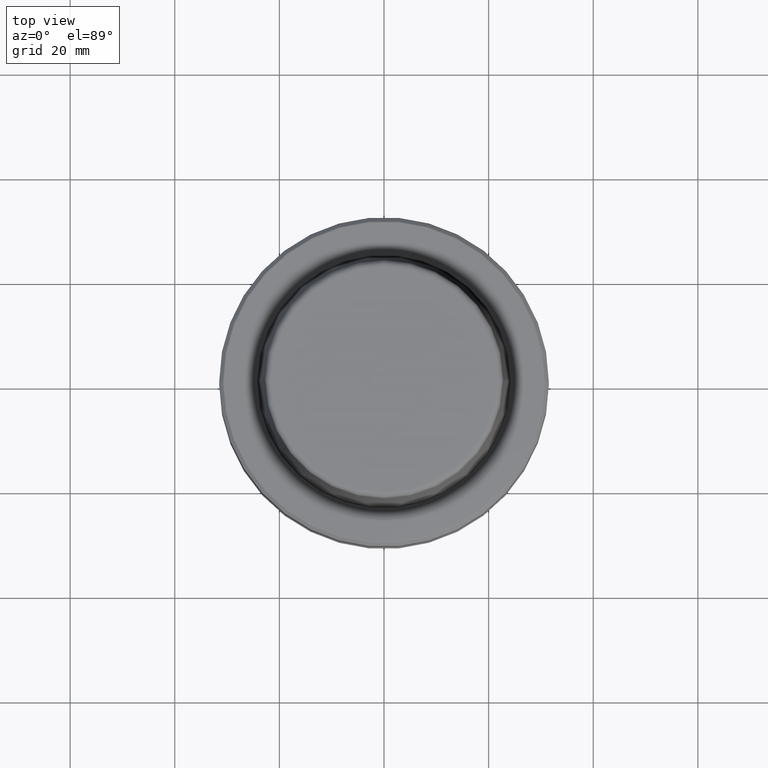
[diagram: clean part render]
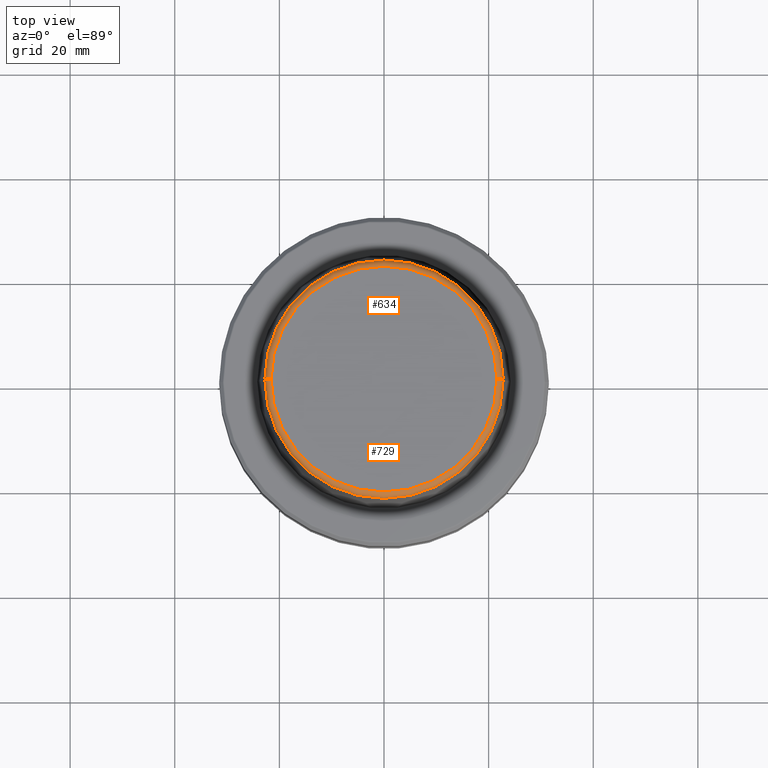
[diagram: same view with one multi-face feature highlighted, each face labeled with its STEP entity id]
A machine part, top view. The highlighted faces form ONE feature: a constant-radius fillet chain: 2 tangent blend faces with common blend radius 1.2 mm. The faces share edges in the B-rep.
Their STEP definitions:
[1] entity #634 (Torus):
#8 = CARTESIAN_POINT ( 'NONE',  ( 0.0000000000000000000, 0.0000000000000000000, 31.89999999999999900 ) ) ;
#106 = CARTESIAN_POINT ( 'NONE',  ( 21.58108272732117100, 0.0000000000000000000, 31.89999999999999900 ) ) ;
#125 = EDGE_CURVE ( 'NONE', #671, #1227, #997, .T. ) ;
#139 = DIRECTION ( 'NONE',  ( 0.0000000000000000000, 0.0000000000000000000, -1.000000000000000000 ) ) ;
#157 = VERTEX_POINT ( 'NONE', #813 ) ;
#261 = ORIENTED_EDGE ( 'NONE', *, *, #674, .F. ) ;
#280 = DIRECTION ( 'NONE',  ( -0.0000000000000000000, -0.0000000000000000000, 1.000000000000000000 ) ) ;
#339 = AXIS2_PLACEMENT_3D ( 'NONE', #889, #776, #1081 ) ;
#379 = AXIS2_PLACEMENT_3D ( 'NONE', #680, #605, #1077 ) ;
#441 = VERTEX_POINT ( 'NONE', #1129 ) ;
#465 = ORIENTED_EDGE ( 'NONE', *, *, #1254, .T. ) ;
#524 = AXIS2_PLACEMENT_3D ( 'NONE', #8, #280, #643 ) ;
#534 = AXIS2_PLACEMENT_3D ( 'NONE', #838, #914, #139 ) ;
#564 = FACE_OUTER_BOUND ( 'NONE', #705, .T. ) ;
#598 = ORIENTED_EDGE ( 'NONE', *, *, #125, .F. ) ;
#605 = DIRECTION ( 'NONE',  ( -0.0000000000000000000, -0.0000000000000000000, 1.000000000000000000 ) ) ;
#606 = CIRCLE ( 'NONE', #1190, 1.200000000000003100 ) ;
#634 = ADVANCED_FACE ( 'NONE', ( #564 ), #886, .T. ) ;
#643 = DIRECTION ( 'NONE',  ( 1.000000000000000000, 0.0000000000000000000, 0.0000000000000000000 ) ) ;
#654 = ORIENTED_EDGE ( 'NONE', *, *, #884, .T. ) ;
#671 = VERTEX_POINT ( 'NONE', #1222 ) ;
#674 = EDGE_CURVE ( 'NONE', #1227, #157, #1116, .T. ) ;
#680 = CARTESIAN_POINT ( 'NONE',  ( 0.0000000000000000000, 0.0000000000000000000, 30.76004333261571900 ) ) ;
#705 = EDGE_LOOP ( 'NONE', ( #654, #465, #261, #598 ) ) ;
#745 = DIRECTION ( 'NONE',  ( -1.000000000000000000, 1.224646799147353200E-016, 0.0000000000000000000 ) ) ;
#776 = DIRECTION ( 'NONE',  ( -0.0000000000000000000, -0.0000000000000000000, 1.000000000000000000 ) ) ;
#787 = CARTESIAN_POINT ( 'NONE',  ( -21.58108272732117100, 2.642920388414810300E-015, 30.69999999999999200 ) ) ;
#813 = CARTESIAN_POINT ( 'NONE',  ( -21.58108272732117100, 2.716307157494421400E-015, 31.89999999999999900 ) ) ;
#838 = CARTESIAN_POINT ( 'NONE',  ( 21.58108272732117100, 0.0000000000000000000, 30.69999999999999200 ) ) ;
#884 = EDGE_CURVE ( 'NONE', #671, #441, #1134, .T. ) ;
#886 = TOROIDAL_SURFACE ( 'NONE', #339, 21.58108272732117100, 1.200000000000003100 ) ;
#889 = CARTESIAN_POINT ( 'NONE',  ( 0.0000000000000000000, 0.0000000000000000000, 30.69999999999999200 ) ) ;
#914 = DIRECTION ( 'NONE',  ( 0.0000000000000000000, -1.000000000000000000, 0.0000000000000000000 ) ) ;
#997 = CIRCLE ( 'NONE', #534, 1.200000000000003100 ) ;
#1077 = DIRECTION ( 'NONE',  ( 1.000000000000000000, 0.0000000000000000000, 0.0000000000000000000 ) ) ;
#1081 = DIRECTION ( 'NONE',  ( 1.000000000000000000, 0.0000000000000000000, 0.0000000000000000000 ) ) ;
#1116 = CIRCLE ( 'NONE', #524, 21.58108272732117100 ) ;
#1129 = CARTESIAN_POINT ( 'NONE',  ( -22.77957961851797100, 0.0000000000000000000, 30.76004333261571900 ) ) ;
#1134 = CIRCLE ( 'NONE', #379, 22.77957961851797100 ) ;
#1190 = AXIS2_PLACEMENT_3D ( 'NONE', #787, #1243, #745 ) ;
#1222 = CARTESIAN_POINT ( 'NONE',  ( 22.77957961851797100, 2.876386432489616700E-015, 30.76004333261571900 ) ) ;
#1227 = VERTEX_POINT ( 'NONE', #106 ) ;
#1243 = DIRECTION ( 'NONE',  ( 1.224646799147353200E-016, 1.000000000000000000, 0.0000000000000000000 ) ) ;
#1254 = EDGE_CURVE ( 'NONE', #441, #157, #606, .T. ) ;
[2] entity #729 (Torus):
#37 = ORIENTED_EDGE ( 'NONE', *, *, #340, .F. ) ;
#48 = CIRCLE ( 'NONE', #829, 21.58108272732117100 ) ;
#88 = EDGE_LOOP ( 'NONE', ( #1112, #144, #1119, #37 ) ) ;
#106 = CARTESIAN_POINT ( 'NONE',  ( 21.58108272732117100, 0.0000000000000000000, 31.89999999999999900 ) ) ;
#125 = EDGE_CURVE ( 'NONE', #671, #1227, #997, .T. ) ;
#139 = DIRECTION ( 'NONE',  ( 0.0000000000000000000, 0.0000000000000000000, -1.000000000000000000 ) ) ;
#144 = ORIENTED_EDGE ( 'NONE', *, *, #656, .T. ) ;
#157 = VERTEX_POINT ( 'NONE', #813 ) ;
#167 = CIRCLE ( 'NONE', #402, 22.77957961851797100 ) ;
#179 = CARTESIAN_POINT ( 'NONE',  ( 0.0000000000000000000, 0.0000000000000000000, 31.89999999999999900 ) ) ;
#271 = DIRECTION ( 'NONE',  ( -0.0000000000000000000, -0.0000000000000000000, 1.000000000000000000 ) ) ;
#340 = EDGE_CURVE ( 'NONE', #157, #1227, #48, .T. ) ;
#402 = AXIS2_PLACEMENT_3D ( 'NONE', #871, #991, #1234 ) ;
#441 = VERTEX_POINT ( 'NONE', #1129 ) ;
#476 = CARTESIAN_POINT ( 'NONE',  ( 0.0000000000000000000, 0.0000000000000000000, 30.69999999999999200 ) ) ;
#517 = DIRECTION ( 'NONE',  ( -0.0000000000000000000, -0.0000000000000000000, 1.000000000000000000 ) ) ;
#534 = AXIS2_PLACEMENT_3D ( 'NONE', #838, #914, #139 ) ;
#606 = CIRCLE ( 'NONE', #1190, 1.200000000000003100 ) ;
#656 = EDGE_CURVE ( 'NONE', #441, #671, #167, .T. ) ;
#671 = VERTEX_POINT ( 'NONE', #1222 ) ;
#729 = ADVANCED_FACE ( 'NONE', ( #1256 ), #1030, .T. ) ;
#745 = DIRECTION ( 'NONE',  ( -1.000000000000000000, 1.224646799147353200E-016, 0.0000000000000000000 ) ) ;
#787 = CARTESIAN_POINT ( 'NONE',  ( -21.58108272732117100, 2.642920388414810300E-015, 30.69999999999999200 ) ) ;
#813 = CARTESIAN_POINT ( 'NONE',  ( -21.58108272732117100, 2.716307157494421400E-015, 31.89999999999999900 ) ) ;
#829 = AXIS2_PLACEMENT_3D ( 'NONE', #179, #517, #1248 ) ;
#838 = CARTESIAN_POINT ( 'NONE',  ( 21.58108272732117100, 0.0000000000000000000, 30.69999999999999200 ) ) ;
#871 = CARTESIAN_POINT ( 'NONE',  ( 0.0000000000000000000, 0.0000000000000000000, 30.76004333261571900 ) ) ;
#912 = AXIS2_PLACEMENT_3D ( 'NONE', #476, #271, #1251 ) ;
#914 = DIRECTION ( 'NONE',  ( 0.0000000000000000000, -1.000000000000000000, 0.0000000000000000000 ) ) ;
#991 = DIRECTION ( 'NONE',  ( -0.0000000000000000000, -0.0000000000000000000, 1.000000000000000000 ) ) ;
#997 = CIRCLE ( 'NONE', #534, 1.200000000000003100 ) ;
#1030 = TOROIDAL_SURFACE ( 'NONE', #912, 21.58108272732117100, 1.200000000000003100 ) ;
#1112 = ORIENTED_EDGE ( 'NONE', *, *, #1254, .F. ) ;
#1119 = ORIENTED_EDGE ( 'NONE', *, *, #125, .T. ) ;
#1129 = CARTESIAN_POINT ( 'NONE',  ( -22.77957961851797100, 0.0000000000000000000, 30.76004333261571900 ) ) ;
#1190 = AXIS2_PLACEMENT_3D ( 'NONE', #787, #1243, #745 ) ;
#1222 = CARTESIAN_POINT ( 'NONE',  ( 22.77957961851797100, 2.876386432489616700E-015, 30.76004333261571900 ) ) ;
#1227 = VERTEX_POINT ( 'NONE', #106 ) ;
#1234 = DIRECTION ( 'NONE',  ( 1.000000000000000000, 0.0000000000000000000, 0.0000000000000000000 ) ) ;
#1243 = DIRECTION ( 'NONE',  ( 1.224646799147353200E-016, 1.000000000000000000, 0.0000000000000000000 ) ) ;
#1248 = DIRECTION ( 'NONE',  ( 1.000000000000000000, 0.0000000000000000000, 0.0000000000000000000 ) ) ;
#1251 = DIRECTION ( 'NONE',  ( 1.000000000000000000, 0.0000000000000000000, 0.0000000000000000000 ) ) ;
#1254 = EDGE_CURVE ( 'NONE', #441, #157, #606, .T. ) ;
#1256 = FACE_OUTER_BOUND ( 'NONE', #88, .T. ) ;